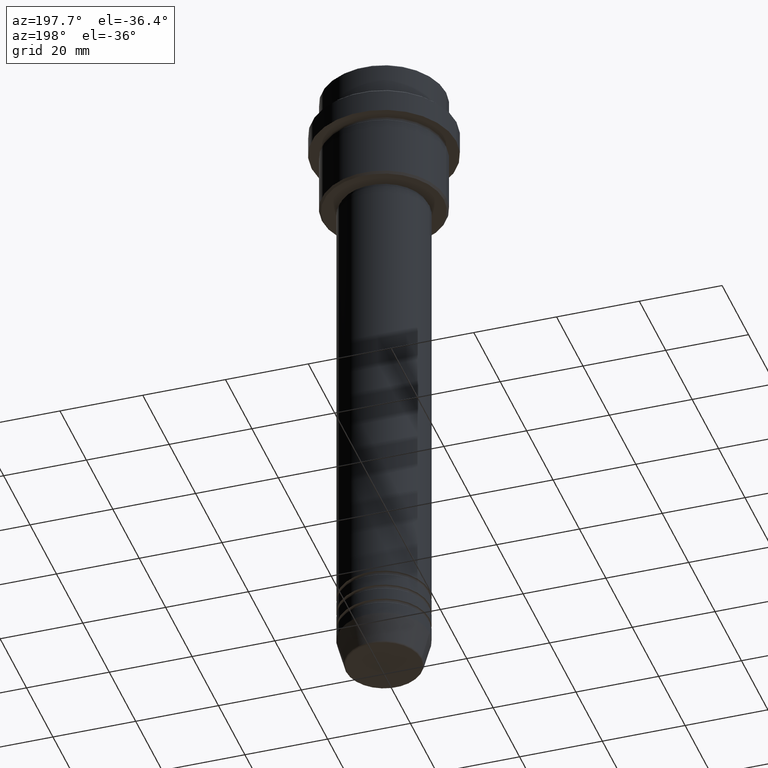
[diagram: clean part render]
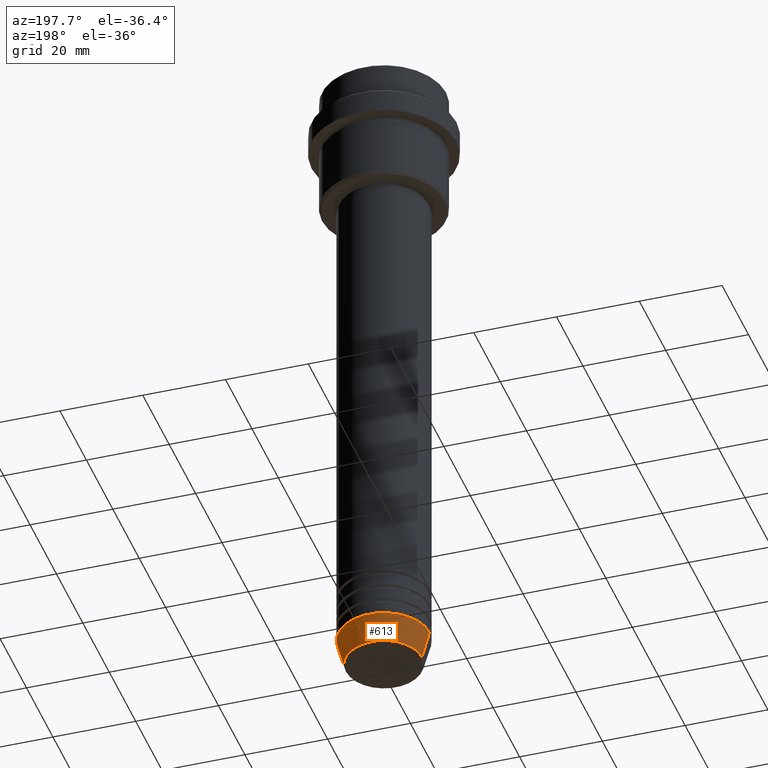
[diagram: same view with one face highlighted and labeled with its STEP entity id]
A machine part, auxiliary view. The second image highlights one B-rep face of the part: STEP entity #613.
In plain terms, the highlighted conical surface has half-angle 15 deg.
Its self-contained STEP definition (entity closure, byte-faithful):
#61 = DIRECTION ( 'NONE',  ( 0.2588190451025213501, 0.000000000000000000, 0.9659258262890680902 ) ) ;
#118 = DIRECTION ( 'NONE',  ( -0.000000000000000000, -0.000000000000000000, 1.000000000000000000 ) ) ;
#127 = EDGE_CURVE ( 'NONE', #449, #439, #218, .T. ) ;
#158 = CARTESIAN_POINT ( 'NONE',  ( 0.000000000000000000, 0.000000000000000000, -160.6294095225512137 ) ) ;
#167 = LINE ( 'NONE', #617, #240 ) ;
#181 = CARTESIAN_POINT ( 'NONE',  ( -11.00000000000000000, 1.347111479062088405E-15, -154.0000000000000000 ) ) ;
#218 = CIRCLE ( 'NONE', #1199, 11.00000000000000000 ) ;
#220 = AXIS2_PLACEMENT_3D ( 'NONE', #158, #247, #485 ) ;
#236 = ORIENTED_EDGE ( 'NONE', *, *, #394, .T. ) ;
#240 = VECTOR ( 'NONE', #61, 1000.000000000000000 ) ;
#247 = DIRECTION ( 'NONE',  ( -0.000000000000000000, -0.000000000000000000, 1.000000000000000000 ) ) ;
#273 = CARTESIAN_POINT ( 'NONE',  ( -11.00000000000000000, 1.347111479062088405E-15, -154.0000000000000000 ) ) ;
#290 = CIRCLE ( 'NONE', #220, 9.223655072137194821 ) ;
#298 = DIRECTION ( 'NONE',  ( 1.000000000000000000, 0.000000000000000000, 0.000000000000000000 ) ) ;
#351 = CARTESIAN_POINT ( 'NONE',  ( 11.00000000000000000, 0.000000000000000000, -154.0000000000000000 ) ) ;
#374 = DIRECTION ( 'NONE',  ( 1.000000000000000000, 0.000000000000000000, 0.000000000000000000 ) ) ;
#384 = VECTOR ( 'NONE', #1056, 1000.000000000000000 ) ;
#394 = EDGE_CURVE ( 'NONE', #680, #1316, #290, .T. ) ;
#439 = VERTEX_POINT ( 'NONE', #273 ) ;
#449 = VERTEX_POINT ( 'NONE', #351 ) ;
#483 = EDGE_CURVE ( 'NONE', #1316, #439, #1391, .T. ) ;
#485 = DIRECTION ( 'NONE',  ( 1.000000000000000000, 0.000000000000000000, 0.000000000000000000 ) ) ;
#528 = AXIS2_PLACEMENT_3D ( 'NONE', #1037, #1271, #298 ) ;
#613 = ADVANCED_FACE ( 'NONE', ( #837 ), #780, .T. ) ;
#616 = CARTESIAN_POINT ( 'NONE',  ( 0.000000000000000000, 0.000000000000000000, -154.0000000000000000 ) ) ;
#617 = CARTESIAN_POINT ( 'NONE',  ( 11.00000000000000000, 0.000000000000000000, -154.0000000000000000 ) ) ;
#633 = EDGE_LOOP ( 'NONE', ( #236, #641, #739, #829 ) ) ;
#641 = ORIENTED_EDGE ( 'NONE', *, *, #483, .T. ) ;
#674 = CARTESIAN_POINT ( 'NONE',  ( 9.223655072137194821, 0.000000000000000000, -160.6294095225512137 ) ) ;
#680 = VERTEX_POINT ( 'NONE', #674 ) ;
#739 = ORIENTED_EDGE ( 'NONE', *, *, #127, .F. ) ;
#780 = CONICAL_SURFACE ( 'NONE', #528, 11.00000000000000000, 0.2617993877991500740 ) ;
#829 = ORIENTED_EDGE ( 'NONE', *, *, #1225, .F. ) ;
#837 = FACE_OUTER_BOUND ( 'NONE', #633, .T. ) ;
#896 = CARTESIAN_POINT ( 'NONE',  ( -9.223655072137194821, 1.238341722557647596E-15, -160.6294095225512137 ) ) ;
#1037 = CARTESIAN_POINT ( 'NONE',  ( 0.000000000000000000, 0.000000000000000000, -154.0000000000000000 ) ) ;
#1056 = DIRECTION ( 'NONE',  ( -0.2588190451025213501, 3.169619151431772337E-17, 0.9659258262890680902 ) ) ;
#1199 = AXIS2_PLACEMENT_3D ( 'NONE', #616, #118, #374 ) ;
#1225 = EDGE_CURVE ( 'NONE', #680, #449, #167, .T. ) ;
#1271 = DIRECTION ( 'NONE',  ( -0.000000000000000000, -0.000000000000000000, 1.000000000000000000 ) ) ;
#1316 = VERTEX_POINT ( 'NONE', #896 ) ;
#1391 = LINE ( 'NONE', #181, #384 ) ;